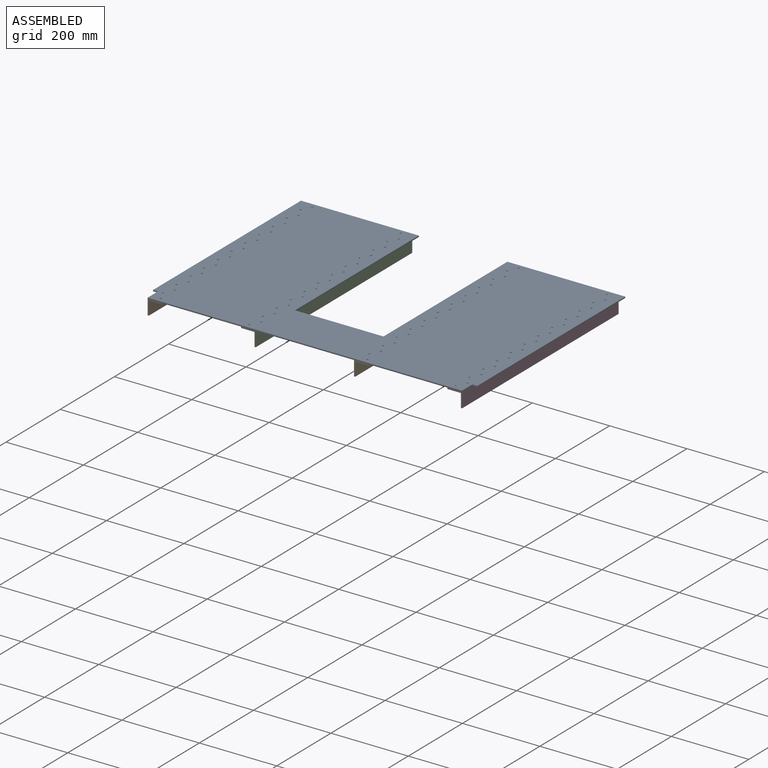
[diagram: assembled view]
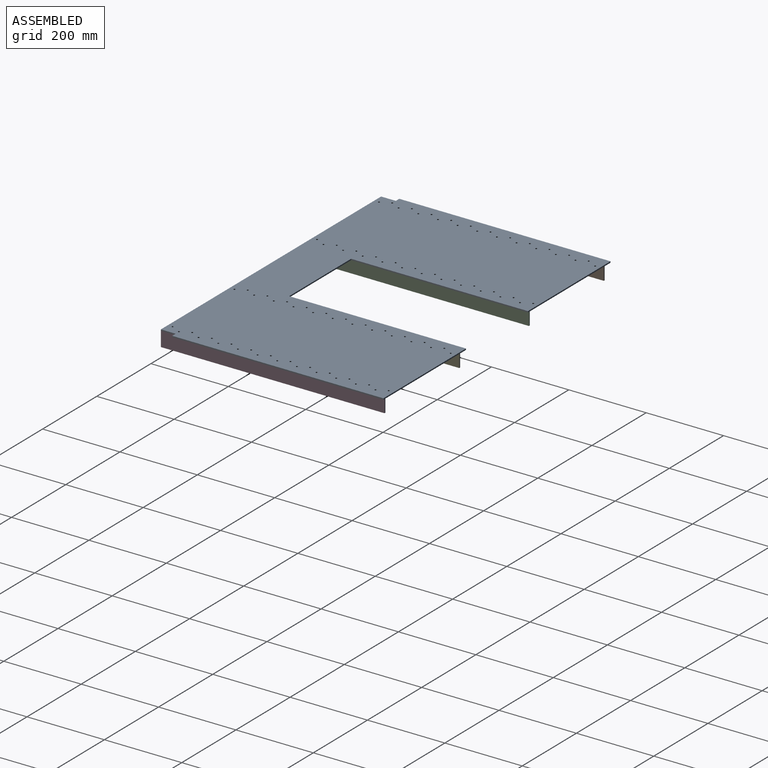
[diagram: assembled view, second angle]
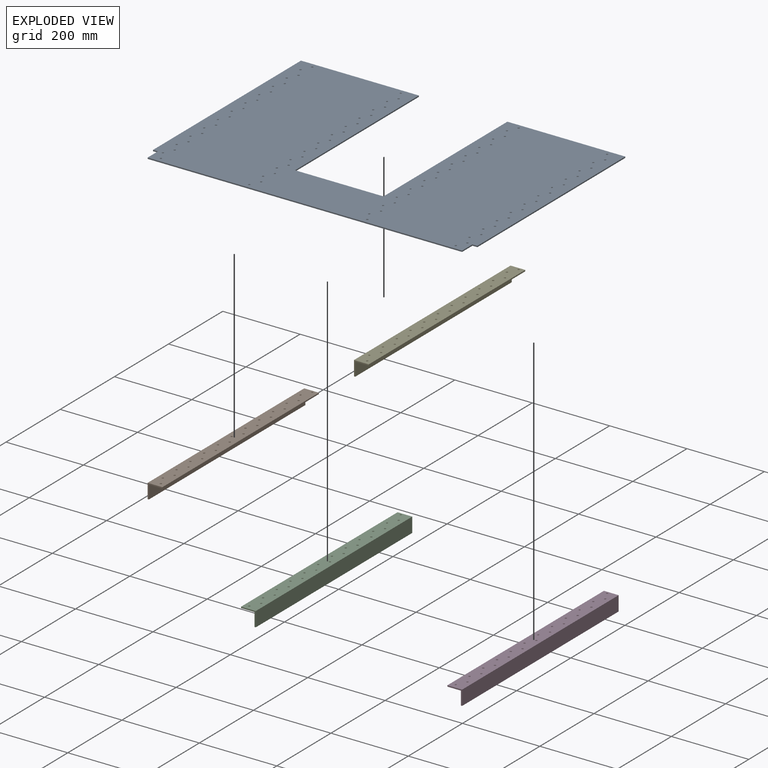
[diagram: exploded view]
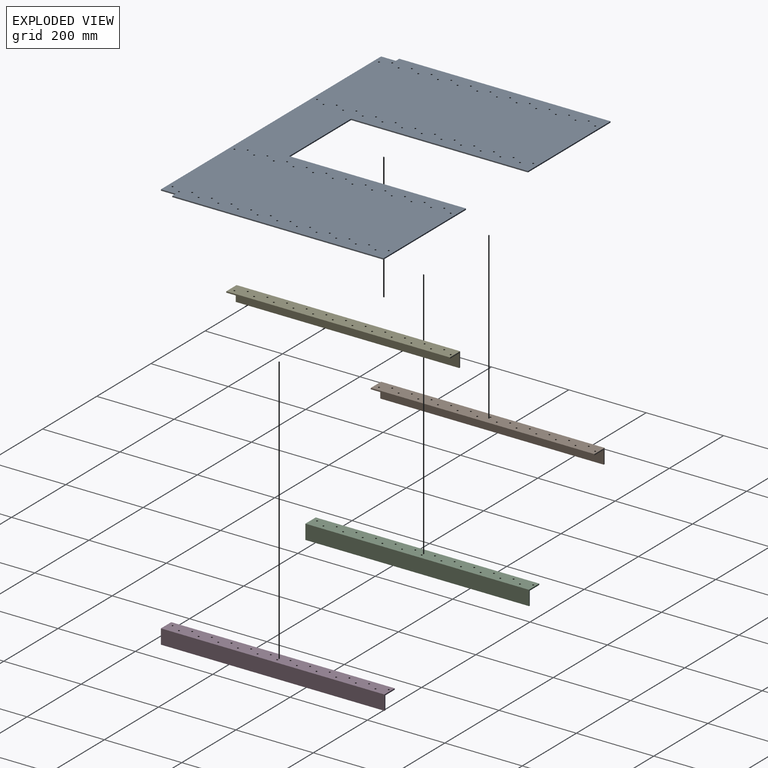
[diagram: exploded view, second angle]
ASSEMBLY  parts=5 mates=4
PART A: 106 faces, bbox 838.2x584.2x3.2 mm
  f0: plane 812.8x3.18mm, normal (0,-1,0), area 2580.6mm2, adj f1,f102,f104,f105
  f1: plane 38.1x3.18mm, normal (1,0,0), area 121mm2, adj f0,f2,f104,f105
  f2: plane 12.7x3.18mm, normal (0,-1,0), area 40.3mm2, adj f1,f3,f104,f105
  f3: plane 546.1x3.18mm, normal (1,0,0), area 1733.9mm2, adj f2,f4,f104,f105
  f4: plane 304.8x3.18mm, normal (0,1,0), area 967.7mm2, adj f3,f5,f104,f105
  f5: plane 457.2x3.18mm, normal (-1,0,0), area 1451.6mm2, adj f4,f6,f104,f105
  f6: plane 228.6x3.18mm, normal (0,1,0), area 725.8mm2, adj f5,f7,f104,f105
  f7: plane 457.2x3.18mm, normal (1,0,0), area 1451.6mm2, adj f6,f8,f104,f105
  f8: plane 304.8x3.18mm, normal (0,1,0), area 967.7mm2, adj f7,f9,f104,f105
  f9: plane 546.1x3.18mm, normal (-1,0,0), area 1733.9mm2, adj f8,f10,f104,f105
  f10: plane 12.7x3.18mm, normal (0,-1,0), area 40.3mm2, adj f9,f102,f104,f105
  f11: cylinder r=2.38mm len=4.76mm, axis (0,0,-1), area 47.5mm2, adj f104,f105
  f12: cylinder r=2.38mm len=4.76mm, axis (0,0,-1), area 47.5mm2, adj f104,f105
  f13: cylinder r=2.38mm len=4.76mm, axis (0,0,-1), area 47.5mm2, adj f104,f105
  f14: cylinder r=2.38mm len=4.76mm, axis (0,0,-1), area 47.5mm2, adj f104,f105
  f15: cylinder r=2.38mm len=4.76mm, axis (0,0,-1), area 47.5mm2, adj f104,f105
  f16: cylinder r=2.38mm len=4.76mm, axis (0,0,-1), area 47.5mm2, adj f104,f105
  f17: cylinder r=2.38mm len=4.76mm, axis (0,0,-1), area 47.5mm2, adj f104,f105
  f18: cylinder r=2.38mm len=4.76mm, axis (0,0,-1), area 47.5mm2, adj f104,f105
  f19: cylinder r=2.38mm len=4.76mm, axis (0,0,-1), area 47.5mm2, adj f104,f105
  f20: cylinder r=2.38mm len=4.76mm, axis (0,0,-1), area 47.5mm2, adj f104,f105
  f21: cylinder r=2.38mm len=4.76mm, axis (0,0,-1), area 47.5mm2, adj f104,f105
  f22: cylinder r=2.38mm len=4.76mm, axis (0,0,-1), area 47.5mm2, adj f104,f105
  f23: cylinder r=2.38mm len=4.76mm, axis (0,0,-1), area 47.5mm2, adj f104,f105
  f24: cylinder r=2.38mm len=4.76mm, axis (0,0,-1), area 47.5mm2, adj f104,f105
  f25: cylinder r=2.38mm len=4.76mm, axis (0,0,-1), area 47.5mm2, adj f104,f105
  f26: cylinder r=2.38mm len=4.76mm, axis (0,0,-1), area 47.5mm2, adj f104,f105
  f27: cylinder r=2.38mm len=4.76mm, axis (0,0,-1), area 47.5mm2, adj f104,f105
  f28: cylinder r=2.38mm len=4.76mm, axis (0,0,-1), area 47.5mm2, adj f104,f105
  f29: cylinder r=2.38mm len=4.76mm, axis (0,0,-1), area 47.5mm2, adj f104,f105
  f30: cylinder r=2.38mm len=4.76mm, axis (0,0,-1), area 47.5mm2, adj f104,f105
  f31: cylinder r=2.38mm len=4.76mm, axis (0,0,-1), area 47.5mm2, adj f104,f105
  f32: cylinder r=2.38mm len=4.76mm, axis (0,0,-1), area 47.5mm2, adj f104,f105
  f33: cylinder r=2.38mm len=4.76mm, axis (0,0,-1), area 47.5mm2, adj f104,f105
  f34: cylinder r=2.38mm len=4.76mm, axis (0,0,-1), area 47.5mm2, adj f104,f105
  f35: cylinder r=2.38mm len=4.76mm, axis (0,0,-1), area 47.5mm2, adj f104,f105
  f36: cylinder r=2.38mm len=4.76mm, axis (0,0,-1), area 47.5mm2, adj f104,f105
  f37: cylinder r=2.38mm len=4.76mm, axis (0,0,-1), area 47.5mm2, adj f104,f105
  f38: cylinder r=2.38mm len=4.76mm, axis (0,0,-1), area 47.5mm2, adj f104,f105
  f39: cylinder r=2.38mm len=4.76mm, axis (0,0,-1), area 47.5mm2, adj f104,f105
  f40: cylinder r=2.38mm len=4.76mm, axis (0,0,-1), area 47.5mm2, adj f104,f105
  f41: cylinder r=2.38mm len=4.76mm, axis (0,0,-1), area 47.5mm2, adj f104,f105
  f42: cylinder r=2.38mm len=4.76mm, axis (0,0,-1), area 47.5mm2, adj f104,f105
  f43: cylinder r=2.38mm len=4.76mm, axis (0,0,-1), area 47.5mm2, adj f104,f105
  f44: cylinder r=2.38mm len=4.76mm, axis (0,0,-1), area 47.5mm2, adj f104,f105
  f45: cylinder r=2.38mm len=4.76mm, axis (0,0,-1), area 47.5mm2, adj f104,f105
  f46: cylinder r=2.38mm len=4.76mm, axis (0,0,-1), area 47.5mm2, adj f104,f105
  f47: cylinder r=2.38mm len=4.76mm, axis (0,0,-1), area 47.5mm2, adj f104,f105
  f48: cylinder r=2.38mm len=4.76mm, axis (0,0,-1), area 47.5mm2, adj f104,f105
  f49: cylinder r=2.38mm len=4.76mm, axis (0,0,-1), area 47.5mm2, adj f104,f105
  f50: cylinder r=2.38mm len=4.76mm, axis (0,0,-1), area 47.5mm2, adj f104,f105
  f51: cylinder r=2.38mm len=4.76mm, axis (0,0,-1), area 47.5mm2, adj f104,f105
  f52: cylinder r=2.38mm len=4.76mm, axis (0,0,-1), area 47.5mm2, adj f104,f105
  f53: cylinder r=2.38mm len=4.76mm, axis (0,0,-1), area 47.5mm2, adj f104,f105
  f54: cylinder r=2.38mm len=4.76mm, axis (0,0,-1), area 47.5mm2, adj f104,f105
  f55: cylinder r=2.38mm len=4.76mm, axis (0,0,-1), area 47.5mm2, adj f104,f105
  f56: cylinder r=2.38mm len=4.76mm, axis (0,0,-1), area 47.5mm2, adj f104,f105
  f57: cylinder r=2.38mm len=4.76mm, axis (0,0,-1), area 47.5mm2, adj f104,f105
  f58: cylinder r=2.38mm len=4.76mm, axis (0,0,-1), area 47.5mm2, adj f104,f105
  f59: cylinder r=2.38mm len=4.76mm, axis (0,0,-1), area 47.5mm2, adj f104,f105
  f60: cylinder r=2.38mm len=4.76mm, axis (0,0,-1), area 47.5mm2, adj f104,f105
  f61: cylinder r=2.38mm len=4.76mm, axis (0,0,-1), area 47.5mm2, adj f104,f105
  f62: cylinder r=2.38mm len=4.76mm, axis (0,0,-1), area 47.5mm2, adj f104,f105
  f63: cylinder r=2.38mm len=4.76mm, axis (0,0,-1), area 47.5mm2, adj f104,f105
  f64: cylinder r=2.38mm len=4.76mm, axis (0,0,-1), area 47.5mm2, adj f104,f105
  f65: cylinder r=2.38mm len=4.76mm, axis (0,0,-1), area 47.5mm2, adj f104,f105
  f66: cylinder r=2.38mm len=4.76mm, axis (0,0,-1), area 47.5mm2, adj f104,f105
  f67: cylinder r=2.38mm len=4.76mm, axis (0,0,-1), area 47.5mm2, adj f104,f105
  f68: cylinder r=2.38mm len=4.76mm, axis (0,0,-1), area 47.5mm2, adj f104,f105
  f69: cylinder r=2.38mm len=4.76mm, axis (0,0,-1), area 47.5mm2, adj f104,f105
  f70: cylinder r=2.38mm len=4.76mm, axis (0,0,-1), area 47.5mm2, adj f104,f105
  f71: cylinder r=2.38mm len=4.76mm, axis (0,0,-1), area 47.5mm2, adj f104,f105
  f72: cylinder r=2.38mm len=4.76mm, axis (0,0,-1), area 47.5mm2, adj f104,f105
  f73: cylinder r=2.38mm len=4.76mm, axis (0,0,-1), area 47.5mm2, adj f104,f105
  f74: cylinder r=2.38mm len=4.76mm, axis (0,0,-1), area 47.5mm2, adj f104,f105
  f75: cylinder r=2.38mm len=4.76mm, axis (0,0,-1), area 47.5mm2, adj f104,f105
  f76: cylinder r=2.38mm len=4.76mm, axis (0,0,-1), area 47.5mm2, adj f104,f105
  f77: cylinder r=2.38mm len=4.76mm, axis (0,0,-1), area 47.5mm2, adj f104,f105
  f78: cylinder r=2.38mm len=4.76mm, axis (0,0,-1), area 47.5mm2, adj f104,f105
  f79: cylinder r=2.38mm len=4.76mm, axis (0,0,-1), area 47.5mm2, adj f104,f105
  f80: cylinder r=2.38mm len=4.76mm, axis (0,0,-1), area 47.5mm2, adj f104,f105
  f81: cylinder r=2.38mm len=4.76mm, axis (0,0,-1), area 47.5mm2, adj f104,f105
  f82: cylinder r=2.38mm len=4.76mm, axis (0,0,-1), area 47.5mm2, adj f104,f105
  f83: cylinder r=2.38mm len=4.76mm, axis (0,0,-1), area 47.5mm2, adj f104,f105
  f84: cylinder r=2.38mm len=4.76mm, axis (0,0,-1), area 47.5mm2, adj f104,f105
  f85: cylinder r=2.38mm len=4.76mm, axis (0,0,-1), area 47.5mm2, adj f104,f105
  f86: cylinder r=2.38mm len=4.76mm, axis (0,0,-1), area 47.5mm2, adj f104,f105
  f87: cylinder r=2.38mm len=4.76mm, axis (0,0,-1), area 47.5mm2, adj f104,f105
  f88: cylinder r=2.38mm len=4.76mm, axis (0,0,-1), area 47.5mm2, adj f104,f105
  f89: cylinder r=2.38mm len=4.76mm, axis (0,0,-1), area 47.5mm2, adj f104,f105
  f90: cylinder r=2.38mm len=4.76mm, axis (0,0,-1), area 47.5mm2, adj f104,f105
  f91: cylinder r=2.38mm len=4.76mm, axis (0,0,-1), area 47.5mm2, adj f104,f105
  f92: cylinder r=2.38mm len=4.76mm, axis (0,0,-1), area 47.5mm2, adj f104,f105
  f93: cylinder r=2.38mm len=4.76mm, axis (0,0,-1), area 47.5mm2, adj f104,f105
  f94: cylinder r=2.38mm len=4.76mm, axis (0,0,-1), area 47.5mm2, adj f104,f105
  f95: cylinder r=2.38mm len=4.76mm, axis (0,0,-1), area 47.5mm2, adj f104,f105
  f96: cylinder r=2.38mm len=4.76mm, axis (0,0,-1), area 47.5mm2, adj f104,f105
  f97: cylinder r=2.38mm len=4.76mm, axis (0,0,-1), area 47.5mm2, adj f104,f105
  f98: cylinder r=2.38mm len=4.76mm, axis (0,0,-1), area 47.5mm2, adj f104,f105
  f99: cylinder r=2.38mm len=4.76mm, axis (0,0,-1), area 47.5mm2, adj f104,f105
  f100: cylinder r=2.38mm len=4.76mm, axis (0,0,-1), area 47.5mm2, adj f104,f105
  f101: cylinder r=2.38mm len=4.76mm, axis (0,0,-1), area 47.5mm2, adj f104,f105
  f102: plane 38.1x3.18mm, normal (-1,0,0), area 121mm2, adj f0,f10,f104,f105
  f103: cylinder r=2.38mm len=4.76mm, axis (0,0,-1), area 47.5mm2, adj f104,f105
  f104: plane 838.2x584.2mm, normal (0,0,1), area 382553.9mm2, adj f0,f1,f2,f3,f4,f5,f6,f7
  f105: plane 838.2x584.2mm, normal (0,0,-1), area 382553.9mm2, adj f0,f1,f2,f3,f4,f5,f6,f7
PART B: 31 faces, bbox 38.1x577.9x38.1 mm
  f0: plane 577.85x3.18mm, normal (1,0,0), area 1834.7mm2, adj f1,f5,f6,f7
  f1: plane 577.85x38.1mm, normal (0,0,1), area 21606.4mm2, adj f0,f2,f6,f7,f8,f9,f10,f11
  f2: plane 577.85x38.1mm, normal (-1,0,0), area 22016.1mm2, adj f1,f3,f6,f7
  f3: plane 577.85x3.18mm, normal (0,0,-1), area 1834.7mm2, adj f2,f4,f6,f7
  f4: plane 577.85x34.93mm, normal (1,0,0), area 20181.4mm2, adj f3,f5,f6,f7
  f5: plane 577.85x34.93mm, normal (0,0,-1), area 19771.7mm2, adj f0,f4,f6,f7,f8,f9,f10,f11
  f6: plane 38.1x38.1mm, normal (0,1,0), area 231.9mm2, adj f0,f1,f2,f3,f4,f5
  f7: plane 38.1x38.1mm, normal (0,-1,0), area 231.9mm2, adj f0,f1,f2,f3,f4,f5
  f8: cylinder r=2.38mm len=4.76mm, axis (0,0,1), area 47.5mm2, adj f1,f5
  f9: cylinder r=2.38mm len=4.76mm, axis (0,0,1), area 47.5mm2, adj f1,f5
  f10: cylinder r=2.38mm len=4.76mm, axis (0,0,1), area 47.5mm2, adj f1,f5
  f11: cylinder r=2.38mm len=4.76mm, axis (0,0,1), area 47.5mm2, adj f1,f5
  f12: cylinder r=2.38mm len=4.76mm, axis (0,0,1), area 47.5mm2, adj f1,f5
  f13: cylinder r=2.38mm len=4.76mm, axis (0,0,1), area 47.5mm2, adj f1,f5
  f14: cylinder r=2.38mm len=4.76mm, axis (0,0,1), area 47.5mm2, adj f1,f5
  f15: cylinder r=2.38mm len=4.76mm, axis (0,0,1), area 47.5mm2, adj f1,f5
  f16: cylinder r=2.38mm len=4.76mm, axis (0,0,1), area 47.5mm2, adj f1,f5
  f17: cylinder r=2.38mm len=4.76mm, axis (0,0,1), area 47.5mm2, adj f1,f5
  f18: cylinder r=2.38mm len=4.76mm, axis (0,0,1), area 47.5mm2, adj f1,f5
  f19: cylinder r=2.38mm len=4.76mm, axis (0,0,1), area 47.5mm2, adj f1,f5
  f20: cylinder r=2.38mm len=4.76mm, axis (0,0,1), area 47.5mm2, adj f1,f5
  f21: cylinder r=2.38mm len=4.76mm, axis (0,0,1), area 47.5mm2, adj f1,f5
  f22: cylinder r=2.38mm len=4.76mm, axis (0,0,1), area 47.5mm2, adj f1,f5
  f23: cylinder r=2.38mm len=4.76mm, axis (0,0,1), area 47.5mm2, adj f1,f5
  f24: cylinder r=2.38mm len=4.76mm, axis (0,0,1), area 47.5mm2, adj f1,f5
  f25: cylinder r=2.38mm len=4.76mm, axis (0,0,1), area 47.5mm2, adj f1,f5
  f26: cylinder r=2.38mm len=4.76mm, axis (0,0,1), area 47.5mm2, adj f1,f5
  f27: cylinder r=2.38mm len=4.76mm, axis (0,0,1), area 47.5mm2, adj f1,f5
  f28: cylinder r=2.38mm len=4.76mm, axis (0,0,1), area 47.5mm2, adj f1,f5
  f29: cylinder r=2.38mm len=4.76mm, axis (0,0,1), area 47.5mm2, adj f1,f5
  f30: cylinder r=2.38mm len=4.76mm, axis (0,0,1), area 47.5mm2, adj f1,f5
PART C: 31 faces, bbox 38.1x577.9x38.1 mm
  f0: plane 577.85x38.1mm, normal (1,0,0), area 22016.1mm2, adj f1,f5,f6,f7
  f1: plane 577.85x38.1mm, normal (0,0,1), area 21606.4mm2, adj f0,f2,f6,f7,f8,f9,f10,f11
  f2: plane 577.85x3.18mm, normal (-1,0,0), area 1834.7mm2, adj f1,f3,f6,f7
  f3: plane 577.85x34.93mm, normal (0,0,-1), area 19771.7mm2, adj f2,f4,f6,f7,f8,f9,f10,f11
  f4: plane 577.85x34.93mm, normal (-1,0,0), area 20181.4mm2, adj f3,f5,f6,f7
  f5: plane 577.85x3.18mm, normal (0,0,-1), area 1834.7mm2, adj f0,f4,f6,f7
  f6: plane 38.1x38.1mm, normal (0,1,0), area 231.9mm2, adj f0,f1,f2,f3,f4,f5
  f7: plane 38.1x38.1mm, normal (0,-1,0), area 231.9mm2, adj f0,f1,f2,f3,f4,f5
  f8: cylinder r=2.38mm len=4.76mm, axis (0,0,1), area 47.5mm2, adj f1,f3
  f9: cylinder r=2.38mm len=4.76mm, axis (0,0,1), area 47.5mm2, adj f1,f3
  f10: cylinder r=2.38mm len=4.76mm, axis (0,0,1), area 47.5mm2, adj f1,f3
  f11: cylinder r=2.38mm len=4.76mm, axis (0,0,1), area 47.5mm2, adj f1,f3
  f12: cylinder r=2.38mm len=4.76mm, axis (0,0,1), area 47.5mm2, adj f1,f3
  f13: cylinder r=2.38mm len=4.76mm, axis (0,0,1), area 47.5mm2, adj f1,f3
  f14: cylinder r=2.38mm len=4.76mm, axis (0,0,1), area 47.5mm2, adj f1,f3
  f15: cylinder r=2.38mm len=4.76mm, axis (0,0,1), area 47.5mm2, adj f1,f3
  f16: cylinder r=2.38mm len=4.76mm, axis (0,0,1), area 47.5mm2, adj f1,f3
  f17: cylinder r=2.38mm len=4.76mm, axis (0,0,1), area 47.5mm2, adj f1,f3
  f18: cylinder r=2.38mm len=4.76mm, axis (0,0,1), area 47.5mm2, adj f1,f3
  f19: cylinder r=2.38mm len=4.76mm, axis (0,0,1), area 47.5mm2, adj f1,f3
  f20: cylinder r=2.38mm len=4.76mm, axis (0,0,1), area 47.5mm2, adj f1,f3
  f21: cylinder r=2.38mm len=4.76mm, axis (0,0,1), area 47.5mm2, adj f1,f3
  f22: cylinder r=2.38mm len=4.76mm, axis (0,0,1), area 47.5mm2, adj f1,f3
  f23: cylinder r=2.38mm len=4.76mm, axis (0,0,1), area 47.5mm2, adj f1,f3
  f24: cylinder r=2.38mm len=4.76mm, axis (0,0,1), area 47.5mm2, adj f1,f3
  f25: cylinder r=2.38mm len=4.76mm, axis (0,0,1), area 47.5mm2, adj f1,f3
  f26: cylinder r=2.38mm len=4.76mm, axis (0,0,1), area 47.5mm2, adj f1,f3
  f27: cylinder r=2.38mm len=4.76mm, axis (0,0,1), area 47.5mm2, adj f1,f3
  f28: cylinder r=2.38mm len=4.76mm, axis (0,0,1), area 47.5mm2, adj f1,f3
  f29: cylinder r=2.38mm len=4.76mm, axis (0,0,1), area 47.5mm2, adj f1,f3
  f30: cylinder r=2.38mm len=4.76mm, axis (0,0,1), area 47.5mm2, adj f1,f3
PART D: same geometry as C
PART E: same geometry as B
PLACE A t=(-2692.38,-156.02,-84.07)mm
PLACE B t=(-304.78,-156.02,-84.07)mm
PLACE C t=(-114.28,-156.02,-84.07)mm
PLACE D t=(419.12,-156.02,-84.07)mm
PLACE E t=(228.62,-156.02,-84.07)mm
MATE fastened A.f67 <-> E.f9  axis (0,0,-1) through (114.32,-143.32,-84.07)mm
MATE fastened C.f9 <-> A.f21  axis (0,0,1) through (-190.48,-143.32,-84.07)mm
MATE fastened A.f90 <-> B.f9  axis (0,0,-1) through (-419.08,-143.32,-84.07)mm
MATE fastened A.f44 <-> D.f9  axis (0,0,-1) through (342.92,-143.32,-84.07)mm
